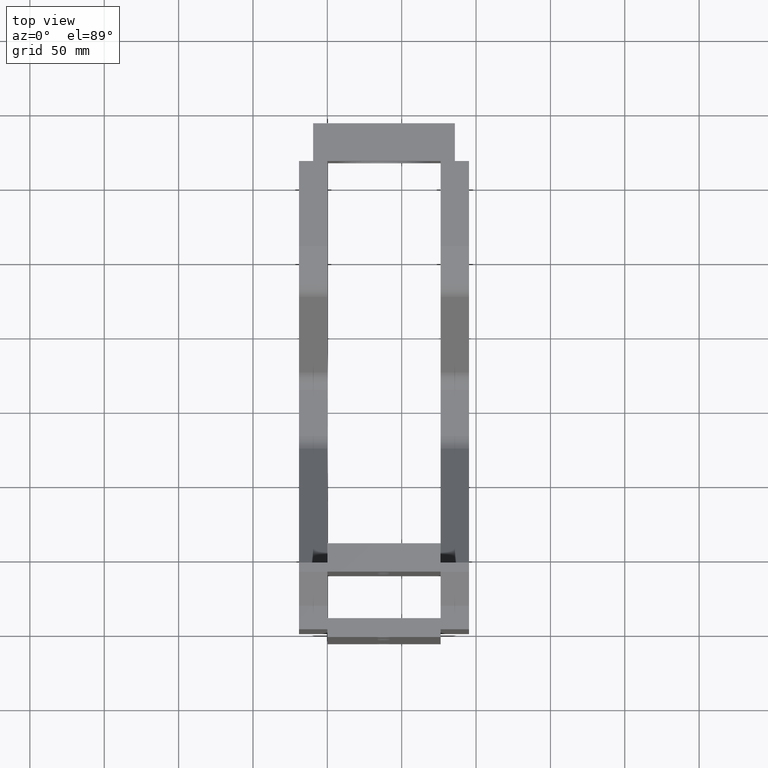
[diagram: clean part render]
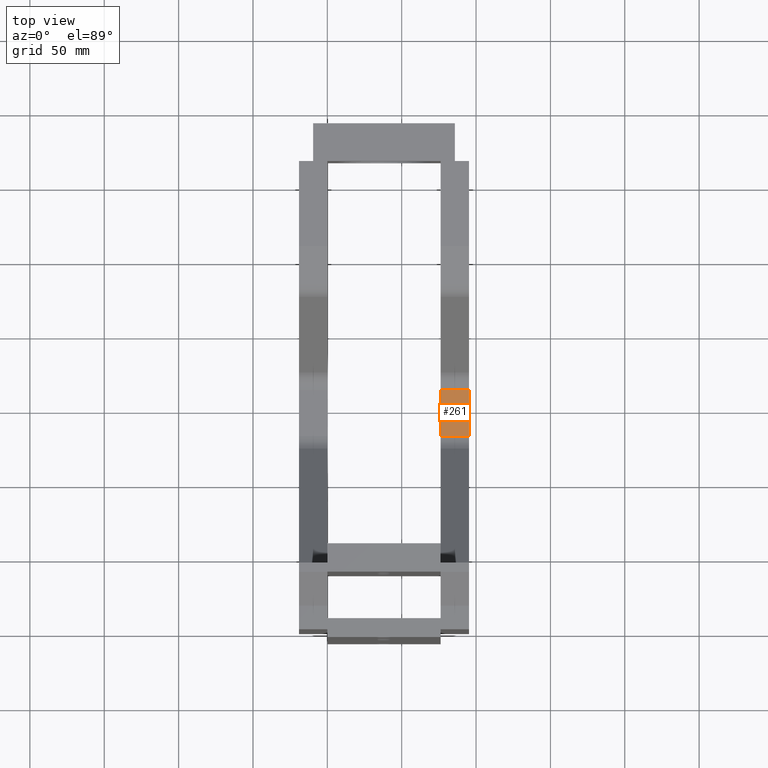
[diagram: same view with one face highlighted and labeled with its STEP entity id]
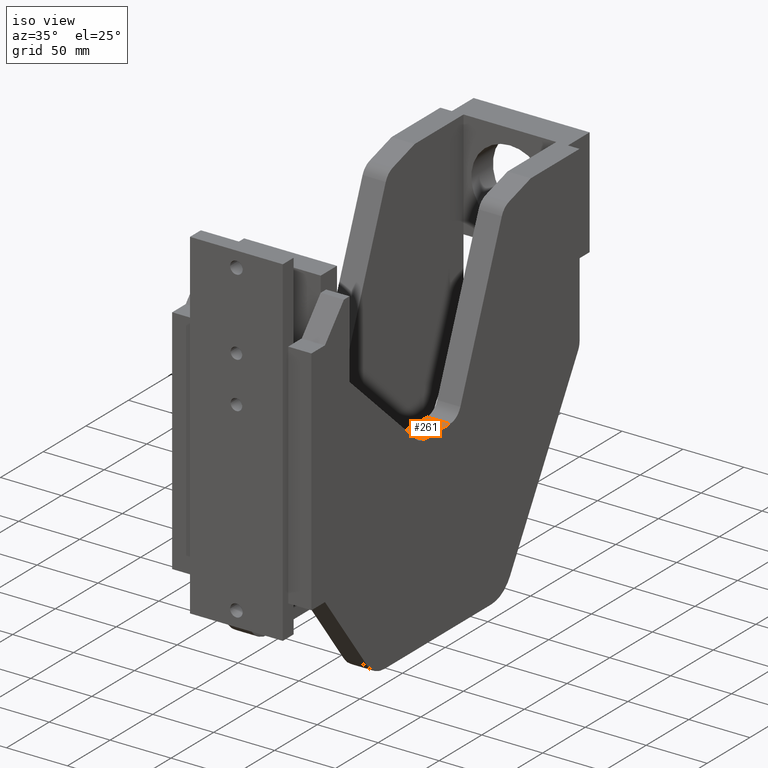
[diagram: same view with one face highlighted and labeled with its STEP entity id]
A machine part, top view. The second image highlights one B-rep face of the part: STEP entity #261.
A second angle (iso view) of the same face is appended — the face is thin or edge-on in the first view.
In plain terms, the highlighted planar face has unit normal (0, -0, -1).
Its self-contained STEP definition (entity closure, byte-faithful):
#25 = EDGE_CURVE ( 'NONE', #257, #45, #589, .T. ) ;
#35 = ORIENTED_EDGE ( 'NONE', *, *, #25, .T. ) ;
#45 = VERTEX_POINT ( 'NONE', #616 ) ;
#257 = VERTEX_POINT ( 'NONE', #972 ) ;
#261 = ADVANCED_FACE ( 'NONE', ( #966 ), #965, .F. ) ;
#262 = EDGE_LOOP ( 'NONE', ( #263, #266, #269, #35 ) ) ;
#263 = ORIENTED_EDGE ( 'NONE', *, *, #264, .T. ) ;
#264 = EDGE_CURVE ( 'NONE', #45, #265, #960, .T. ) ;
#265 = VERTEX_POINT ( 'NONE', #956 ) ;
#266 = ORIENTED_EDGE ( 'NONE', *, *, #267, .F. ) ;
#267 = EDGE_CURVE ( 'NONE', #268, #265, #1018, .T. ) ;
#268 = VERTEX_POINT ( 'NONE', #1014 ) ;
#269 = ORIENTED_EDGE ( 'NONE', *, *, #270, .F. ) ;
#270 = EDGE_CURVE ( 'NONE', #257, #268, #1013, .T. ) ;
#581 = DIRECTION ( 'NONE',  ( -1.405158487424903800E-030, 1.487357257999809700E-030, -1.000000000000000000 ) ) ;
#582 = VECTOR ( 'NONE', #581, 39.37007874015748100 ) ;
#583 = CARTESIAN_POINT ( 'NONE',  ( 24.96844123263105800, 23.00701407466547400, 0.7500000000000089900 ) ) ;
#589 = LINE ( 'NONE', #583, #582 ) ;
#616 = CARTESIAN_POINT ( 'NONE',  ( 24.96844123263105800, 23.00701407466547400, 0.0000000000000000000 ) ) ;
#956 = CARTESIAN_POINT ( 'NONE',  ( 24.96844123263105100, 21.79248907466547500, 0.0000000000000000000 ) ) ;
#957 = DIRECTION ( 'NONE',  ( -3.747089299799806800E-030, -1.000000000000000000, 1.401075596491286600E-030 ) ) ;
#958 = VECTOR ( 'NONE', #957, 39.37007874015748100 ) ;
#959 = CARTESIAN_POINT ( 'NONE',  ( 24.96844123263105800, 21.79248907466547500, 0.0000000000000000000 ) ) ;
#960 = LINE ( 'NONE', #959, #958 ) ;
#961 = DIRECTION ( 'NONE',  ( -1.405158487424903500E-030, 1.450379403067574800E-030, -1.000000000000000000 ) ) ;
#962 = DIRECTION ( 'NONE',  ( 1.000000000000000000, 3.155443620883994300E-030, -1.405158487424903500E-030 ) ) ;
#963 = CARTESIAN_POINT ( 'NONE',  ( 24.96844123263105800, 21.79248907466547500, 0.7500000000000002200 ) ) ;
#964 = AXIS2_PLACEMENT_3D ( 'NONE', #963, #962, #961 ) ;
#965 = PLANE ( 'NONE',  #964 ) ;
#966 = FACE_OUTER_BOUND ( 'NONE', #262, .T. ) ;
#972 = CARTESIAN_POINT ( 'NONE',  ( 24.96844123263105800, 23.00701407466547400, 0.7500000000000089900 ) ) ;
#1010 = DIRECTION ( 'NONE',  ( -3.747089299799806800E-030, -1.000000000000000000, 1.401075596491286600E-030 ) ) ;
#1011 = VECTOR ( 'NONE', #1010, 39.37007874015748100 ) ;
#1012 = CARTESIAN_POINT ( 'NONE',  ( 24.96844123263105800, 21.79248907466547500, 0.7500000000000002200 ) ) ;
#1013 = LINE ( 'NONE', #1012, #1011 ) ;
#1014 = CARTESIAN_POINT ( 'NONE',  ( 24.96844123263105100, 21.79248907466547500, 0.7500000000000002200 ) ) ;
#1015 = DIRECTION ( 'NONE',  ( -1.405158487424903800E-030, 1.487357257999809700E-030, -1.000000000000000000 ) ) ;
#1016 = VECTOR ( 'NONE', #1015, 39.37007874015748100 ) ;
#1017 = CARTESIAN_POINT ( 'NONE',  ( 24.96844123263105100, 21.79248907466547500, 0.7500000000000002200 ) ) ;
#1018 = LINE ( 'NONE', #1017, #1016 ) ;